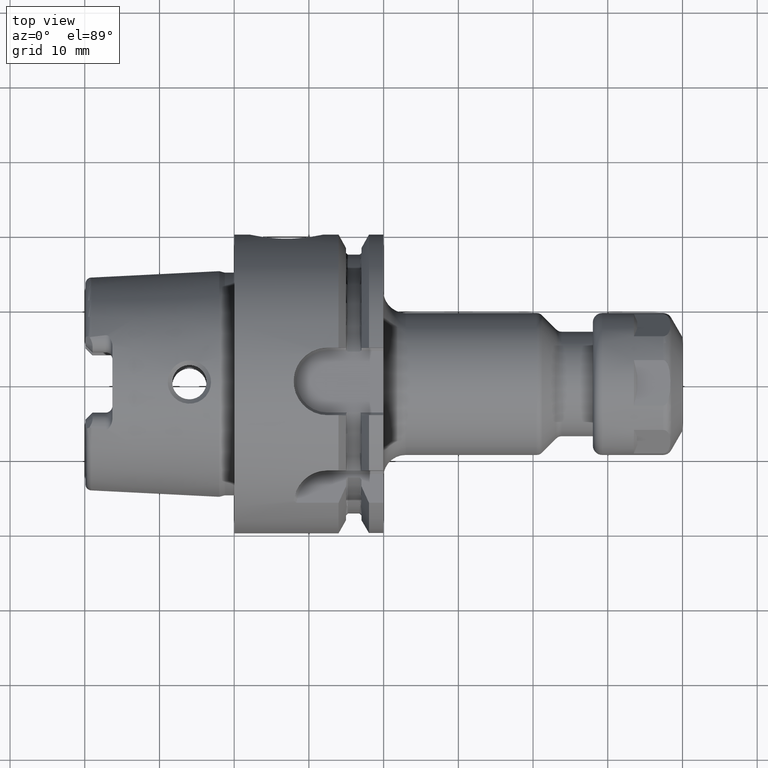
[diagram: clean part render]
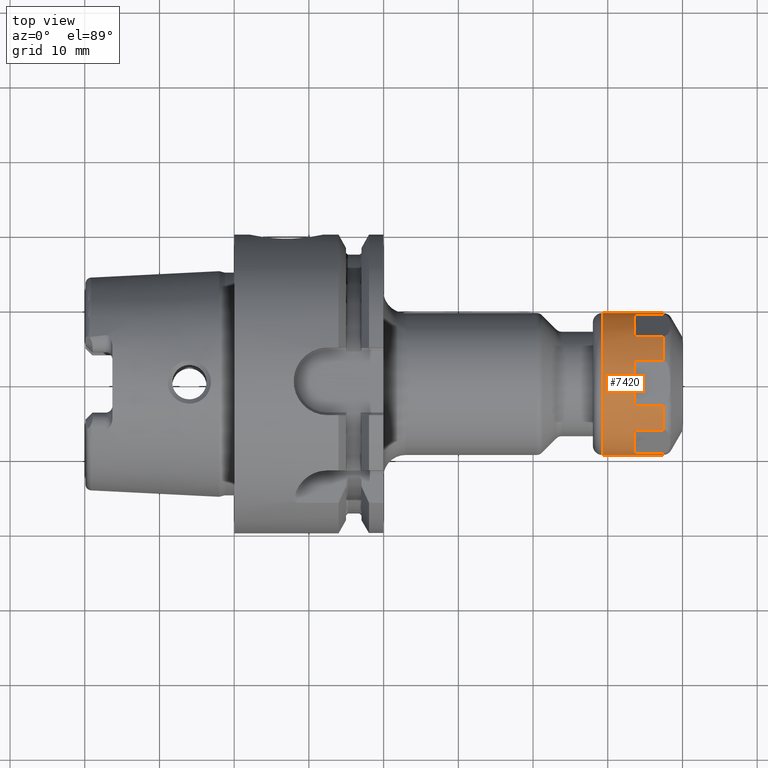
[diagram: same view with one face highlighted and labeled with its STEP entity id]
A machine part, top view. The second image highlights one B-rep face of the part: STEP entity #7420.
In plain terms, the highlighted cylindrical surface (partial cylindrical patch) has radius 9.5 mm, axis along (1, 0, 0).
Its self-contained STEP definition (entity closure, byte-faithful):
#6924=DIRECTION('',(-1.E0,0.E0,4.888404731839E-10));
#6925=VECTOR('',#6924,8.151923788649E0);
#6926=CARTESIAN_POINT('',(9.401923788649E0,9.5E0,-1.544208175716E-10));
#6927=LINE('',#6926,#6925);
#6933=DIRECTION('',(-1.E0,0.E0,-4.888405330192E-10));
#6934=VECTOR('',#6933,8.151923788649E0);
#6935=CARTESIAN_POINT('',(9.401923788649E0,-9.5E0,1.544205148904E-10));
#6936=LINE('',#6935,#6934);
#6984=CARTESIAN_POINT('',(9.401923788647E0,0.E0,0.E0));
#6985=DIRECTION('',(-1.E0,0.E0,0.E0));
#6986=DIRECTION('',(0.E0,3.201453963315E-1,9.473684210526E-1));
#6987=AXIS2_PLACEMENT_3D('',#6984,#6985,#6986);
#6989=CARTESIAN_POINT('',(9.401923788647E0,0.E0,0.E0));
#6990=DIRECTION('',(-1.E0,0.E0,0.E0));
#6991=DIRECTION('',(0.E0,-6.603724212090E-1,7.509382566540E-1));
#6992=AXIS2_PLACEMENT_3D('',#6989,#6990,#6991);
#6994=CARTESIAN_POINT('',(9.401923788647E0,0.E0,0.E0));
#6995=DIRECTION('',(-1.E0,0.E0,0.E0));
#6996=DIRECTION('',(0.E0,-1.E0,0.E0));
#6997=AXIS2_PLACEMENT_3D('',#6994,#6995,#6996);
#6999=CARTESIAN_POINT('',(1.25E0,0.E0,0.E0));
#7000=DIRECTION('',(-1.E0,0.E0,0.E0));
#7001=DIRECTION('',(0.E0,-1.E0,0.E0));
#7002=AXIS2_PLACEMENT_3D('',#6999,#7000,#7001);
#7004=CARTESIAN_POINT('',(9.401923788647E0,0.E0,0.E0));
#7005=DIRECTION('',(-1.E0,0.E0,0.E0));
#7006=DIRECTION('',(0.E0,9.805178175405E-1,1.964301643986E-1));
#7007=AXIS2_PLACEMENT_3D('',#7004,#7005,#7006);
#7009=CARTESIAN_POINT('',(5.501015314387E0,0.E0,0.E0));
#7010=DIRECTION('',(-1.E0,0.E0,0.E0));
#7011=DIRECTION('',(0.E0,6.603724212090E-1,7.509382566540E-1));
#7012=AXIS2_PLACEMENT_3D('',#7009,#7010,#7011);
#7023=DIRECTION('',(9.999998437813E-1,4.758416946876E-4,2.932782500743E-4));
#7024=VECTOR('',#7023,3.898630975753E0);
#7025=CARTESIAN_POINT('',(5.503293421933E0,9.313064135464E0,1.864943178117E0));
#7026=LINE('',#7025,#7024);
#7027=DIRECTION('',(-1.E0,0.E0,0.E0));
#7028=VECTOR('',#7027,3.901327294459E0);
#7029=CARTESIAN_POINT('',(9.401923788647E0,6.273538001485E0,7.133913438213E0));
#7030=LINE('',#7029,#7028);
#7031=CARTESIAN_POINT('',(9.401923788647E0,-6.273538001485E0,7.133913438213E0));
#7049=CARTESIAN_POINT('',(9.401923788647E0,-9.314919266635E0,1.866086561787E0));
#7051=CARTESIAN_POINT('',(9.401923788647E0,3.041381265149E0,9.E0));
#7069=CARTESIAN_POINT('',(9.401923788647E0,-3.041381265149E0,9.E0));
#7071=CARTESIAN_POINT('',(9.401923788647E0,9.314919266634E0,1.866086561787E0));
#7089=CARTESIAN_POINT('',(9.401923788647E0,6.273538001485E0,7.133913438213E0));
#7104=DIRECTION('',(9.999998373752E-1,5.017671241962E-4,-2.710705893526E-4));
#7105=VECTOR('',#7104,3.903581332431E0);
#7106=CARTESIAN_POINT('',(5.498343091035E0,-6.275496690265E0,7.134971584306E0));
#7107=LINE('',#7106,#7105);
#7108=DIRECTION('',(-1.E0,0.E0,0.E0));
#7109=VECTOR('',#7108,3.900846657186E0);
#7110=CARTESIAN_POINT('',(9.401923788647E0,-9.314919266635E0,1.866086561787E0));
#7111=LINE('',#7110,#7109);
#7112=CARTESIAN_POINT('',(5.500941340891E0,0.E0,0.E0));
#7113=DIRECTION('',(-1.E0,0.E0,0.E0));
#7114=DIRECTION('',(0.E0,-9.805178175405E-1,1.964301643986E-1));
#7115=AXIS2_PLACEMENT_3D('',#7112,#7113,#7114);
#7125=DIRECTION('',(9.999999999980E-1,2.335242123683E-7,-1.968492345412E-6));
#7126=VECTOR('',#7125,3.900602683876E0);
#7127=CARTESIAN_POINT('',(5.501321104778E0,3.041380354264E0,9.000007678307E0));
#7128=LINE('',#7127,#7126);
#7129=DIRECTION('',(-1.E0,0.E0,0.E0));
#7130=VECTOR('',#7129,3.900593911289E0);
#7131=CARTESIAN_POINT('',(9.401923788647E0,-3.041381265149E0,9.E0));
#7132=LINE('',#7131,#7130);
#7133=CARTESIAN_POINT('',(5.501036513266E0,-4.611858033279E-6,
-6.251942531449E-3));
#7134=DIRECTION('',(-1.E0,0.E0,0.E0));
#7135=DIRECTION('',(0.E0,-3.199454794895E-1,9.474359557006E-1));
#7136=AXIS2_PLACEMENT_3D('',#7133,#7134,#7135);
#7176=CARTESIAN_POINT('',(1.25E0,9.5E0,0.E0));
#7177=CARTESIAN_POINT('',(1.25E0,-9.5E0,0.E0));
#7178=VERTEX_POINT('',#7176);
#7179=VERTEX_POINT('',#7177);
#7184=CARTESIAN_POINT('',(9.401923788649E0,9.5E0,-1.544208175716E-10));
#7185=VERTEX_POINT('',#7184);
#7186=CARTESIAN_POINT('',(9.401923788649E0,-9.5E0,1.544205148904E-10));
#7187=VERTEX_POINT('',#7186);
#7188=VERTEX_POINT('',#7031);
#7189=VERTEX_POINT('',#7049);
#7190=VERTEX_POINT('',#7051);
#7191=VERTEX_POINT('',#7069);
#7192=VERTEX_POINT('',#7071);
#7193=VERTEX_POINT('',#7089);
#7200=CARTESIAN_POINT('',(5.500941340891E0,-9.314919266635E0,1.866086561787E0));
#7201=CARTESIAN_POINT('',(5.500941340891E0,-6.273538001485E0,7.133913438213E0));
#7202=VERTEX_POINT('',#7200);
#7203=VERTEX_POINT('',#7201);
#7216=CARTESIAN_POINT('',(5.501015314387E0,6.273538001485E0,7.133913438213E0));
#7217=CARTESIAN_POINT('',(5.501015314387E0,9.314919266634E0,1.866086561787E0));
#7218=VERTEX_POINT('',#7216);
#7219=VERTEX_POINT('',#7217);
#7220=CARTESIAN_POINT('',(5.501036513266E0,-3.041475162593E0,9.000278053045E0));
#7221=CARTESIAN_POINT('',(5.501036513266E0,3.041474218658E0,9.000275256991E0));
#7222=VERTEX_POINT('',#7220);
#7223=VERTEX_POINT('',#7221);
#7383=CARTESIAN_POINT('',(-6.E-1,0.E0,0.E0));
#7384=DIRECTION('',(1.E0,0.E0,0.E0));
#7385=DIRECTION('',(0.E0,-1.E0,0.E0));
#7386=AXIS2_PLACEMENT_3D('',#7383,#7384,#7385);
#7387=CYLINDRICAL_SURFACE('',#7386,9.5E0);
#7389=ORIENTED_EDGE('',*,*,#7388,.F.);
#7391=ORIENTED_EDGE('',*,*,#7390,.F.);
#7393=ORIENTED_EDGE('',*,*,#7392,.F.);
#7395=ORIENTED_EDGE('',*,*,#7394,.F.);
#7397=ORIENTED_EDGE('',*,*,#7396,.F.);
#7399=ORIENTED_EDGE('',*,*,#7398,.F.);
#7401=ORIENTED_EDGE('',*,*,#7400,.F.);
#7403=ORIENTED_EDGE('',*,*,#7402,.F.);
#7405=ORIENTED_EDGE('',*,*,#7404,.F.);
#7407=ORIENTED_EDGE('',*,*,#7406,.F.);
#7409=ORIENTED_EDGE('',*,*,#7408,.F.);
#7410=ORIENTED_EDGE('',*,*,#7330,.T.);
#7412=ORIENTED_EDGE('',*,*,#7411,.T.);
#7413=ORIENTED_EDGE('',*,*,#7326,.F.);
#7415=ORIENTED_EDGE('',*,*,#7414,.F.);
#7417=ORIENTED_EDGE('',*,*,#7416,.F.);
#7418=EDGE_LOOP('',(#7389,#7391,#7393,#7395,#7397,#7399,#7401,#7403,#7405,#7407,
#7409,#7410,#7412,#7413,#7415,#7417));
#7419=FACE_OUTER_BOUND('',#7418,.F.);
#7420=ADVANCED_FACE('',(#7419),#7387,.T.);
#6988=CIRCLE('',#6987,9.5E0);
#6993=CIRCLE('',#6992,9.5E0);
#6998=CIRCLE('',#6997,9.5E0);
#7003=CIRCLE('',#7002,9.5E0);
#7008=CIRCLE('',#7007,9.5E0);
#7013=CIRCLE('',#7012,9.5E0);
#7116=CIRCLE('',#7115,9.5E0);
#7137=CIRCLE('',#7136,9.506215107613E0);
#7326=EDGE_CURVE('',#7185,#7178,#6927,.T.);
#7330=EDGE_CURVE('',#7187,#7179,#6936,.T.);
#7388=EDGE_CURVE('',#7218,#7219,#7013,.T.);
#7390=EDGE_CURVE('',#7193,#7218,#7030,.T.);
#7392=EDGE_CURVE('',#7190,#7193,#6988,.T.);
#7394=EDGE_CURVE('',#7223,#7190,#7128,.T.);
#7396=EDGE_CURVE('',#7222,#7223,#7137,.T.);
#7398=EDGE_CURVE('',#7191,#7222,#7132,.T.);
#7400=EDGE_CURVE('',#7188,#7191,#6993,.T.);
#7402=EDGE_CURVE('',#7203,#7188,#7107,.T.);
#7404=EDGE_CURVE('',#7202,#7203,#7116,.T.);
#7406=EDGE_CURVE('',#7189,#7202,#7111,.T.);
#7408=EDGE_CURVE('',#7187,#7189,#6998,.T.);
#7411=EDGE_CURVE('',#7179,#7178,#7003,.T.);
#7414=EDGE_CURVE('',#7192,#7185,#7008,.T.);
#7416=EDGE_CURVE('',#7219,#7192,#7026,.T.);